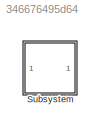
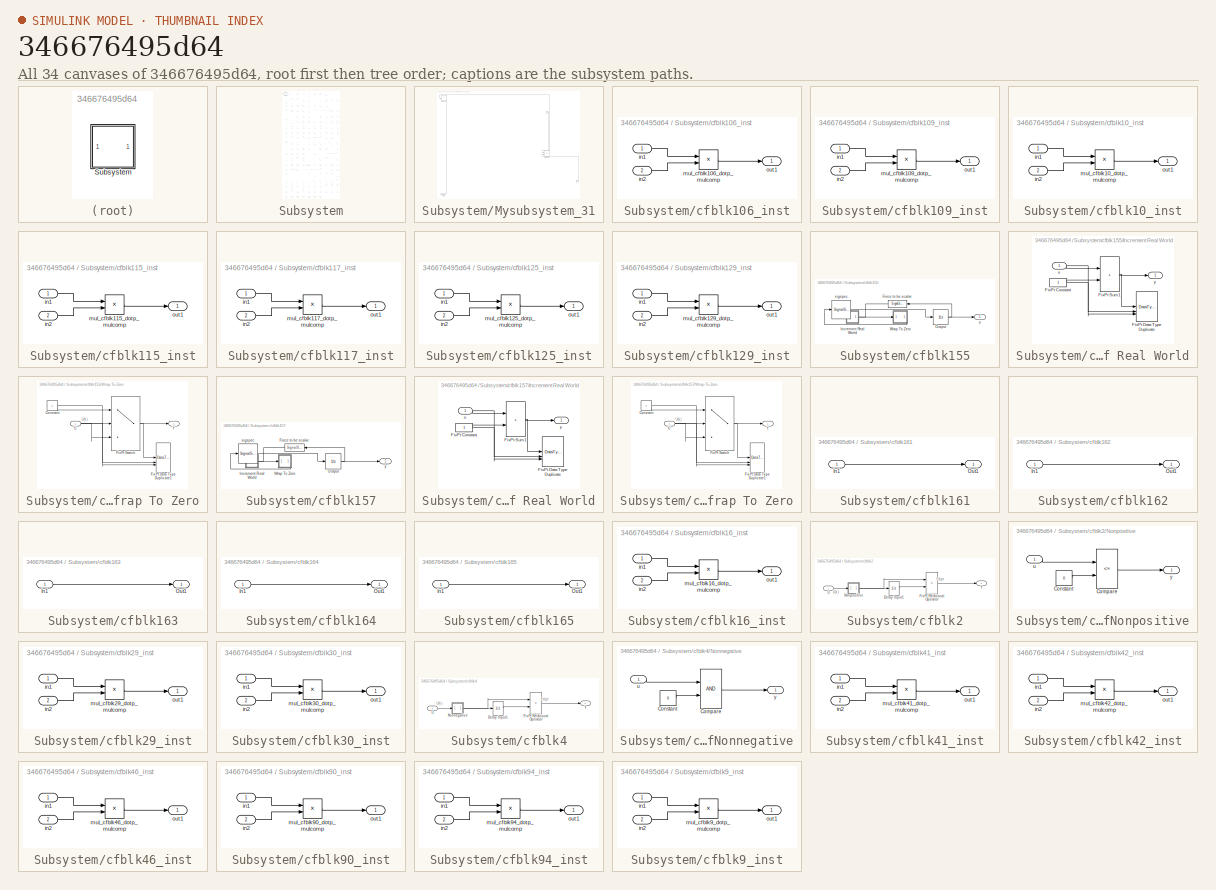
[diagram: thumbnail index - all 34 canvases of the model, root first then tree order]
MODEL slx_346676495d64
KIND model
CONFIG AbsTol = auto
CONFIG EnableMultiTasking = off
CONFIG FixedStep = auto
CONFIG MaxStep = auto
CONFIG MinStep = auto
CONFIG RelTol = 1e-3
CONFIG SampleTimeConstraint = Unconstrained
CONFIG SolverName = VariableStepAuto
CONFIG StartTime = 0.0
CONFIG StopTime = 10.0
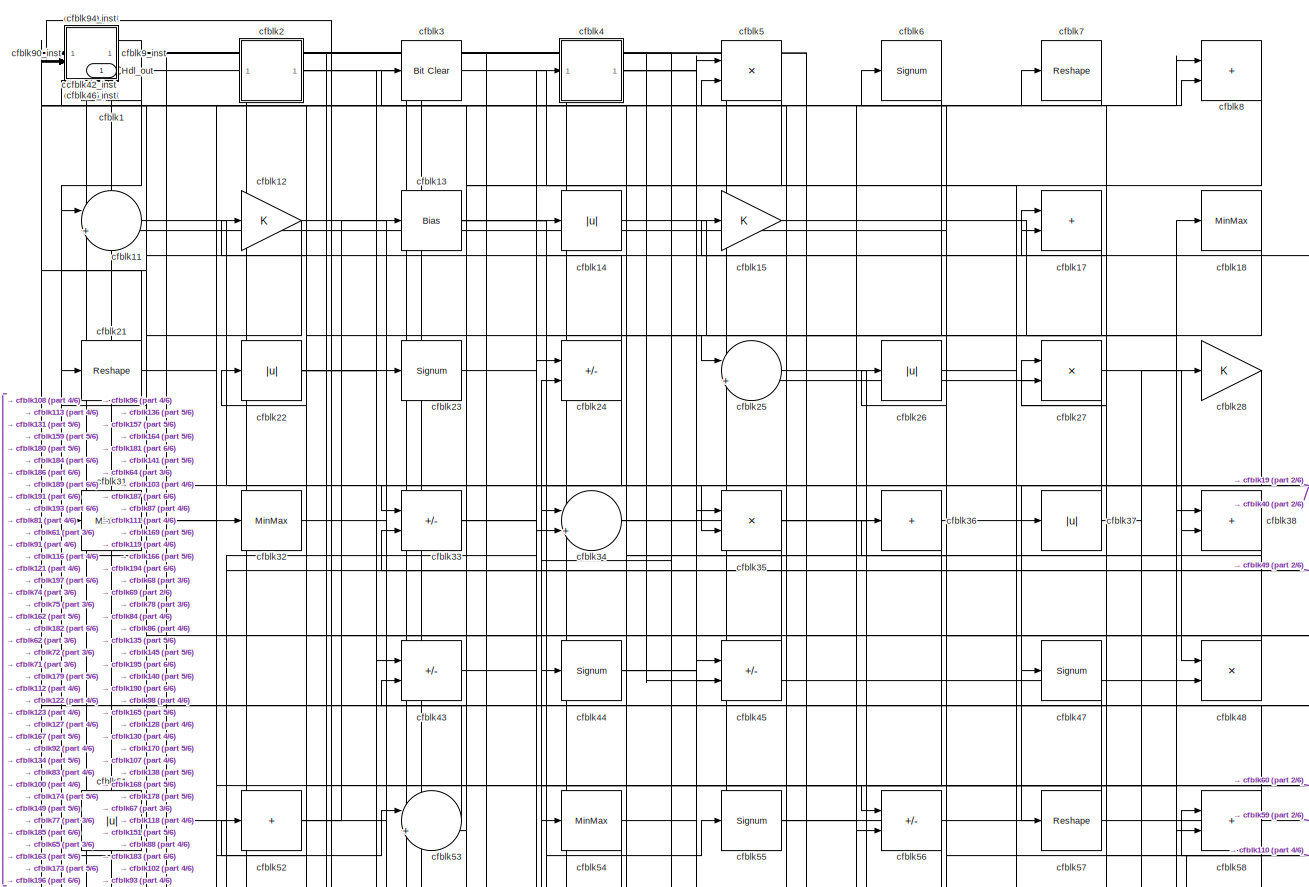
[diagram: Subsystem - part 1/6, full width, top band]
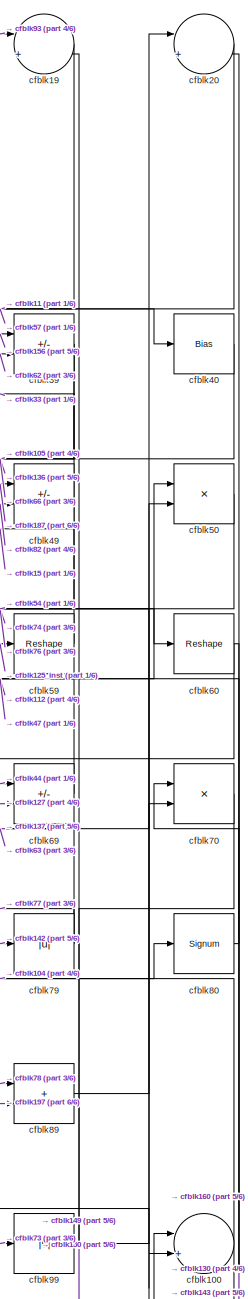
[diagram: Subsystem - part 2/6, top right region]
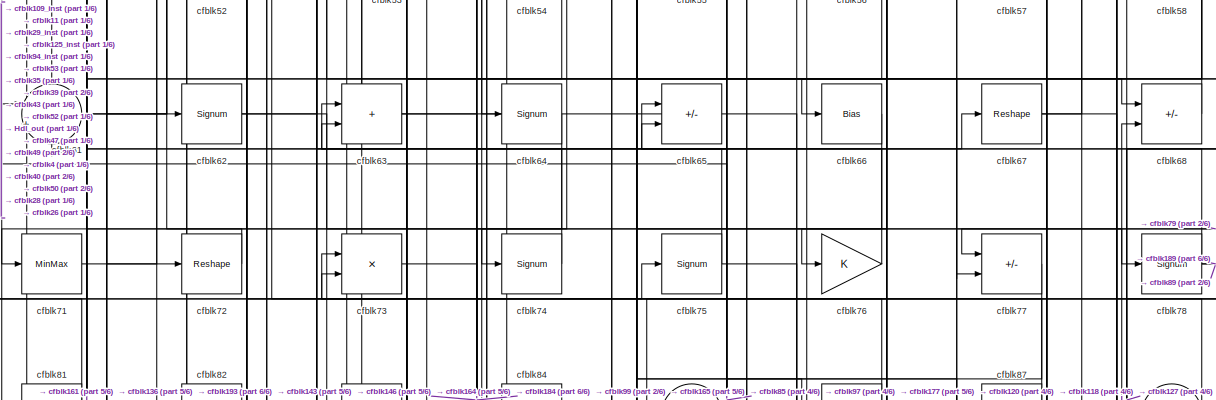
[diagram: Subsystem - part 3/6, full width, middle band]
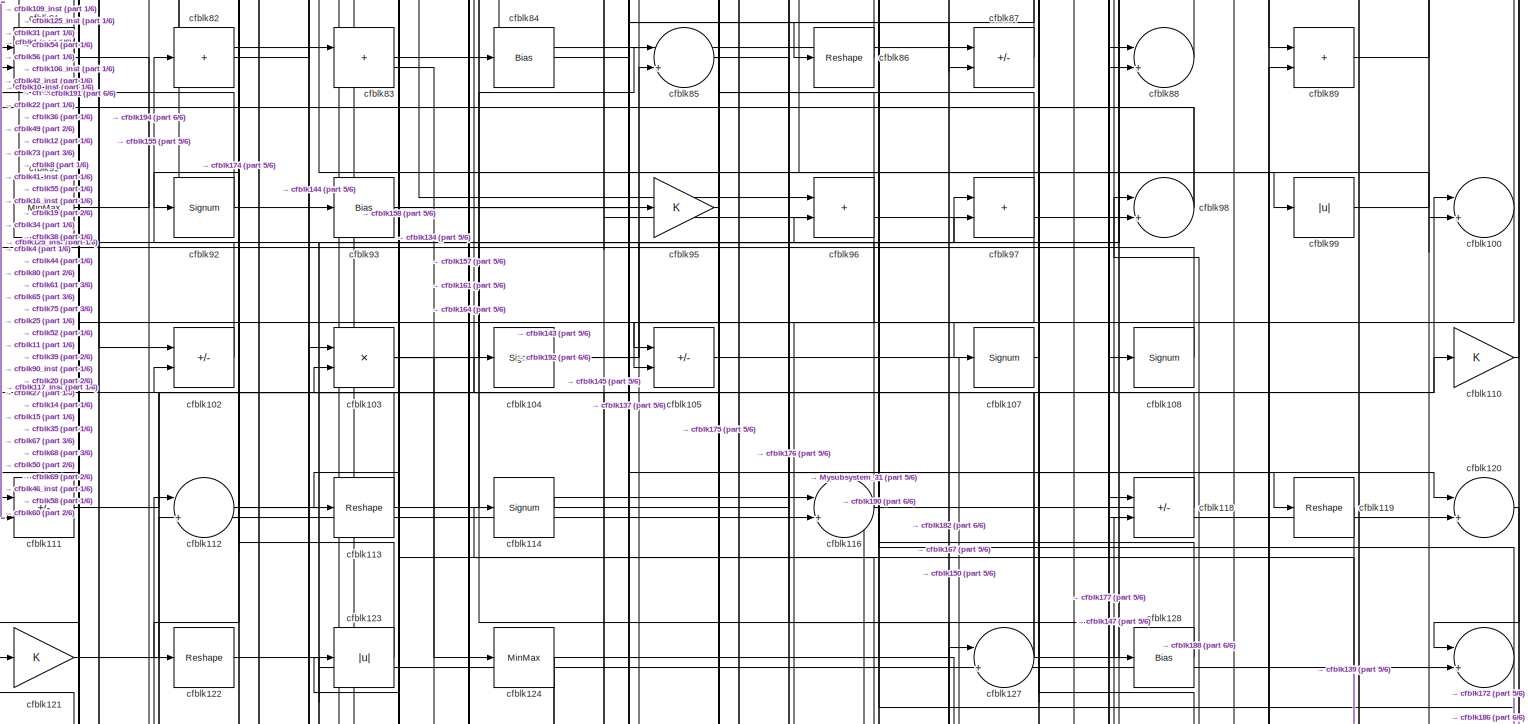
[diagram: Subsystem - part 4/6, full width, middle band]
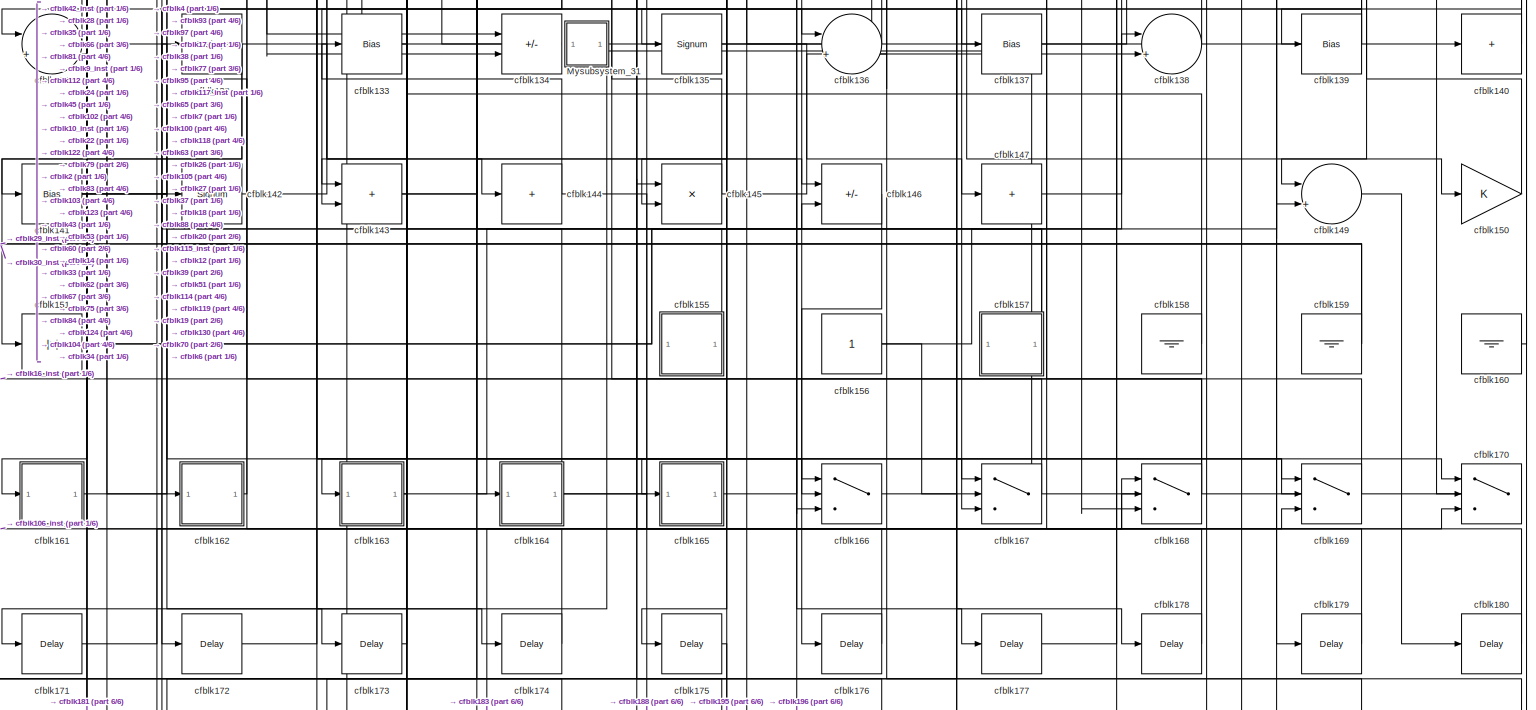
[diagram: Subsystem - part 5/6, full width, bottom band]
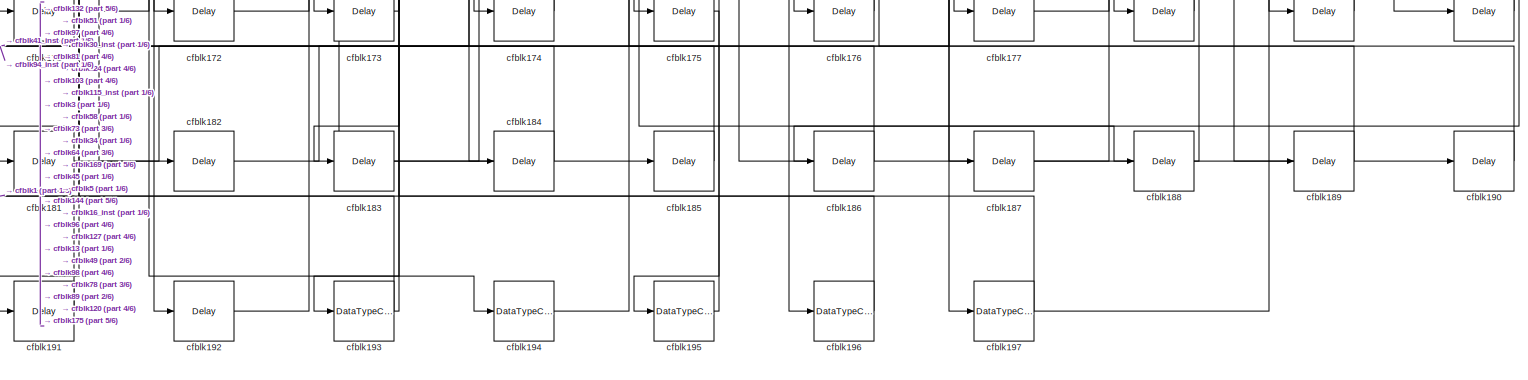
[diagram: Subsystem - part 6/6, full width, bottom band]
BLOCK [SubSystem] Subsystem
BLOCK [Outport] Subsystem/Hdl_out
  OutDataTypeStr = uint8
  SampleTime = 1
BLOCK [SubSystem] Subsystem/Mysubsystem_31
BLOCK [Inport] Subsystem/Mysubsystem_31/In1
  OutDataTypeStr = uint8
  PortDimensions = 1
  SampleTime = 1
BLOCK [Inport] Subsystem/Mysubsystem_31/In2
  OutDataTypeStr = uint8
  Port = 2
  PortDimensions = 1
  SampleTime = 1
BLOCK [Outport] Subsystem/Mysubsystem_31/Out1
  SampleTime = 1
BLOCK [Sum] Subsystem/Mysubsystem_31/cfblk101
  IconShape = rectangular
  Inputs = +
BLOCK [Sum] Subsystem/Mysubsystem_31/cfblk148
  IconShape = rectangular
  Inputs = +-
BLOCK [Logic] Subsystem/cfblk1
  AllPortsSameDT = off
  OutDataTypeStr = boolean
BLOCK [Sum] Subsystem/cfblk100
  Inputs = |++
  OutDataTypeStr = uint8
BLOCK [Sum] Subsystem/cfblk102
  IconShape = rectangular
  Inputs = +-
  OutDataTypeStr = uint8
BLOCK [Product] Subsystem/cfblk103
  Inputs = */
  OutDataTypeStr = uint8
  RndMeth = Zero
  SaturateOnIntegerOverflow = on
BLOCK [Signum] Subsystem/cfblk104
BLOCK [Sum] Subsystem/cfblk105
  IconShape = rectangular
  Inputs = +-
  OutDataTypeStr = uint8
BLOCK [SubSystem] Subsystem/cfblk106_inst
BLOCK [Inport] Subsystem/cfblk106_inst/in1
  OutDataTypeStr = uint8
  SampleTime = 1
BLOCK [Inport] Subsystem/cfblk106_inst/in2
  OutDataTypeStr = uint8
  Port = 2
  SampleTime = 1
BLOCK [Product] Subsystem/cfblk106_inst/mul_cfblk106_dotp_mulcomp
  Inputs = **
  OutDataTypeStr = uint8
  SampleTime = 1
BLOCK [Outport] Subsystem/cfblk106_inst/out1
  OutDataTypeStr = uint8
  SampleTime = 1
BLOCK [Signum] Subsystem/cfblk107
BLOCK [Signum] Subsystem/cfblk108
BLOCK [SubSystem] Subsystem/cfblk109_inst
BLOCK [Inport] Subsystem/cfblk109_inst/in1
  OutDataTypeStr = uint8
  SampleTime = 1
BLOCK [Inport] Subsystem/cfblk109_inst/in2
  OutDataTypeStr = uint8
  Port = 2
  SampleTime = 1
BLOCK [Product] Subsystem/cfblk109_inst/mul_cfblk109_dotp_mulcomp
  Inputs = **
  OutDataTypeStr = uint8
  SampleTime = 1
BLOCK [Outport] Subsystem/cfblk109_inst/out1
  OutDataTypeStr = uint8
  SampleTime = 1
BLOCK [SubSystem] Subsystem/cfblk10_inst
BLOCK [Inport] Subsystem/cfblk10_inst/in1
  OutDataTypeStr = uint8
  SampleTime = 1
BLOCK [Inport] Subsystem/cfblk10_inst/in2
  OutDataTypeStr = uint8
  Port = 2
  SampleTime = 1
BLOCK [Product] Subsystem/cfblk10_inst/mul_cfblk10_dotp_mulcomp
  Inputs = **
  OutDataTypeStr = uint8
  SampleTime = 1
BLOCK [Outport] Subsystem/cfblk10_inst/out1
  OutDataTypeStr = uint8
  SampleTime = 1
BLOCK [Sum] Subsystem/cfblk11
  Inputs = |++
  OutDataTypeStr = uint8
BLOCK [Gain] Subsystem/cfblk110
  OutDataTypeStr = uint8
BLOCK [Sum] Subsystem/cfblk111
  IconShape = rectangular
  Inputs = +-
  OutDataTypeStr = uint8
BLOCK [Sum] Subsystem/cfblk112
  Inputs = |++
  OutDataTypeStr = uint8
BLOCK [Reshape] Subsystem/cfblk113
BLOCK [Signum] Subsystem/cfblk114
BLOCK [SubSystem] Subsystem/cfblk115_inst
BLOCK [Inport] Subsystem/cfblk115_inst/in1
  OutDataTypeStr = uint8
  SampleTime = 1
BLOCK [Inport] Subsystem/cfblk115_inst/in2
  OutDataTypeStr = uint8
  Port = 2
  SampleTime = 1
BLOCK [Product] Subsystem/cfblk115_inst/mul_cfblk115_dotp_mulcomp
  Inputs = **
  OutDataTypeStr = uint8
  SampleTime = 1
BLOCK [Outport] Subsystem/cfblk115_inst/out1
  OutDataTypeStr = uint8
  SampleTime = 1
BLOCK [Sum] Subsystem/cfblk116
  Inputs = |++
  OutDataTypeStr = uint8
BLOCK [SubSystem] Subsystem/cfblk117_inst
BLOCK [Inport] Subsystem/cfblk117_inst/in1
  OutDataTypeStr = uint8
  SampleTime = 1
BLOCK [Inport] Subsystem/cfblk117_inst/in2
  OutDataTypeStr = uint8
  Port = 2
  SampleTime = 1
BLOCK [Product] Subsystem/cfblk117_inst/mul_cfblk117_dotp_mulcomp
  Inputs = **
  OutDataTypeStr = uint8
  SampleTime = 1
BLOCK [Outport] Subsystem/cfblk117_inst/out1
  OutDataTypeStr = uint8
  SampleTime = 1
BLOCK [Sum] Subsystem/cfblk118
  IconShape = rectangular
  Inputs = +-
  OutDataTypeStr = uint8
BLOCK [Reshape] Subsystem/cfblk119
BLOCK [Gain] Subsystem/cfblk12
  OutDataTypeStr = uint8
BLOCK [Sum] Subsystem/cfblk120
  Inputs = |++
  OutDataTypeStr = uint8
BLOCK [Gain] Subsystem/cfblk121
  OutDataTypeStr = uint8
BLOCK [Reshape] Subsystem/cfblk122
BLOCK [Abs] Subsystem/cfblk123
  OutDataTypeStr = uint8
  SaturateOnIntegerOverflow = off
BLOCK [MinMax] Subsystem/cfblk124
  OutDataTypeStr = uint8
BLOCK [SubSystem] Subsystem/cfblk125_inst
BLOCK [Inport] Subsystem/cfblk125_inst/in1
  OutDataTypeStr = uint8
  SampleTime = 1
BLOCK [Inport] Subsystem/cfblk125_inst/in2
  OutDataTypeStr = uint8
  Port = 2
  SampleTime = 1
BLOCK [Product] Subsystem/cfblk125_inst/mul_cfblk125_dotp_mulcomp
  Inputs = **
  OutDataTypeStr = uint8
  SampleTime = 1
BLOCK [Outport] Subsystem/cfblk125_inst/out1
  OutDataTypeStr = uint8
  SampleTime = 1
BLOCK [Sum] Subsystem/cfblk127
  Inputs = |++
  OutDataTypeStr = uint8
BLOCK [Bias] Subsystem/cfblk128
  Bias = 0.0
  SaturateOnIntegerOverflow = off
BLOCK [SubSystem] Subsystem/cfblk129_inst
BLOCK [Inport] Subsystem/cfblk129_inst/in1
  OutDataTypeStr = uint8
  SampleTime = 1
BLOCK [Inport] Subsystem/cfblk129_inst/in2
  OutDataTypeStr = uint8
  Port = 2
  SampleTime = 1
BLOCK [Product] Subsystem/cfblk129_inst/mul_cfblk129_dotp_mulcomp
  Inputs = **
  OutDataTypeStr = uint8
  SampleTime = 1
BLOCK [Outport] Subsystem/cfblk129_inst/out1
  OutDataTypeStr = uint8
  SampleTime = 1
BLOCK [Bias] Subsystem/cfblk13
  Bias = 0.0
  SaturateOnIntegerOverflow = off
BLOCK [Sum] Subsystem/cfblk130
  Inputs = |++
  OutDataTypeStr = uint8
BLOCK [Sum] Subsystem/cfblk131
  Inputs = |++
  OutDataTypeStr = uint8
BLOCK [Reshape] Subsystem/cfblk132
BLOCK [Bias] Subsystem/cfblk133
  Bias = 0.0
  SaturateOnIntegerOverflow = off
BLOCK [Sum] Subsystem/cfblk134
  IconShape = rectangular
  Inputs = +-
  OutDataTypeStr = uint8
BLOCK [Signum] Subsystem/cfblk135
BLOCK [Sum] Subsystem/cfblk136
  Inputs = |++
  OutDataTypeStr = uint8
BLOCK [Bias] Subsystem/cfblk137
  Bias = 0.0
  SaturateOnIntegerOverflow = off
BLOCK [Sum] Subsystem/cfblk138
  Inputs = |++
  OutDataTypeStr = uint8
BLOCK [Bias] Subsystem/cfblk139
  Bias = 0.0
  SaturateOnIntegerOverflow = off
BLOCK [Abs] Subsystem/cfblk14
  OutDataTypeStr = uint8
  SaturateOnIntegerOverflow = off
BLOCK [Sum] Subsystem/cfblk140
  IconShape = rectangular
  Inputs = +
  OutDataTypeStr = uint8
BLOCK [Bias] Subsystem/cfblk141
  Bias = 0.0
  SaturateOnIntegerOverflow = off
BLOCK [Signum] Subsystem/cfblk142
BLOCK [Sum] Subsystem/cfblk143
  IconShape = rectangular
  OutDataTypeStr = uint8
BLOCK [Sum] Subsystem/cfblk144
  IconShape = rectangular
  Inputs = +
  OutDataTypeStr = uint8
BLOCK [Product] Subsystem/cfblk145
  Inputs = */
  OutDataTypeStr = uint8
  RndMeth = Zero
  SaturateOnIntegerOverflow = on
BLOCK [Sum] Subsystem/cfblk146
  IconShape = rectangular
  Inputs = +-
  OutDataTypeStr = uint8
BLOCK [Sum] Subsystem/cfblk147
  IconShape = rectangular
  Inputs = +
  OutDataTypeStr = uint8
BLOCK [Sum] Subsystem/cfblk149
  Inputs = |++
  OutDataTypeStr = uint8
BLOCK [Gain] Subsystem/cfblk15
  OutDataTypeStr = uint8
BLOCK [Gain] Subsystem/cfblk150
  OutDataTypeStr = uint8
BLOCK [Abs] Subsystem/cfblk151
  OutDataTypeStr = uint8
  SaturateOnIntegerOverflow = off
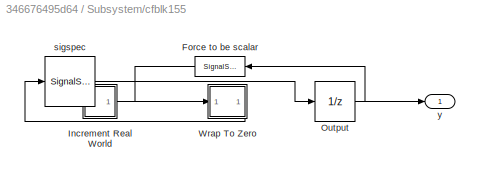
BLOCK [SubSystem] Subsystem/cfblk155
BLOCK [SignalSpecification] Subsystem/cfblk155/Force to be scalar
  Dimensions = 1
  DisableCoverage = on
BLOCK [SubSystem] Subsystem/cfblk155/Increment Real World
BLOCK [Constant] Subsystem/cfblk155/Increment Real World/FixPt Constant
  DisableCoverage = on
  OutDataTypeStr = Inherit: Inherit via back propagation
  SampleTime = -1
BLOCK [DataTypeDuplicate] Subsystem/cfblk155/Increment Real World/FixPt Data Type Duplicate
  DisableCoverage = on
  NumInputPorts = 3
BLOCK [Sum] Subsystem/cfblk155/Increment Real World/FixPt Sum1
  IconShape = rectangular
  InputSameDT = on
  LockScale = on
  OutDataTypeStr = Inherit: Inherit via back propagation
BLOCK [Inport] Subsystem/cfblk155/Increment Real World/u
  OutDataTypeStr = uint8
  SampleTime = 1
BLOCK [Outport] Subsystem/cfblk155/Increment Real World/y
  SampleTime = 1
BLOCK [UnitDelay] Subsystem/cfblk155/Output
  HasFrameUpgradeWarning = on
  InitialCondition = 0.0
  SampleTime = tsamp
BLOCK [SubSystem] Subsystem/cfblk155/Wrap To Zero
BLOCK [Constant] Subsystem/cfblk155/Wrap To Zero/Constant
  DisableCoverage = on
  OutDataTypeStr = Inherit: Inherit via back propagation
  SampleTime = -1
  Value = 0
BLOCK [DataTypeDuplicate] Subsystem/cfblk155/Wrap To Zero/FixPt Data Type Duplicate1
  DisableCoverage = on
  NumInputPorts = 3
BLOCK [Switch] Subsystem/cfblk155/Wrap To Zero/FixPt Switch
  Criteria = u2 > Threshold
  InputSameDT = off
  OutDataTypeStr = Inherit: Inherit via back propagation
  SaturateOnIntegerOverflow = off
  Threshold = Threshold
  ZeroCross = off
BLOCK [Inport] Subsystem/cfblk155/Wrap To Zero/U
  OutDataTypeStr = uint8
  SampleTime = 1
BLOCK [Outport] Subsystem/cfblk155/Wrap To Zero/Y
  SampleTime = 1
BLOCK [SignalSpecification] Subsystem/cfblk155/sigspec
  Dimensions = 1
  OutDataTypeStr = uint8
BLOCK [Outport] Subsystem/cfblk155/y
  SampleTime = 1
BLOCK [Constant] Subsystem/cfblk156
  OutDataTypeStr = uint8
  SampleTime = -1
BLOCK [SubSystem] Subsystem/cfblk157
BLOCK [SignalSpecification] Subsystem/cfblk157/Force to be scalar
  Dimensions = 1
  DisableCoverage = on
BLOCK [SubSystem] Subsystem/cfblk157/Increment Real World
BLOCK [Constant] Subsystem/cfblk157/Increment Real World/FixPt Constant
  DisableCoverage = on
  OutDataTypeStr = Inherit: Inherit via back propagation
  SampleTime = -1
BLOCK [DataTypeDuplicate] Subsystem/cfblk157/Increment Real World/FixPt Data Type Duplicate
  DisableCoverage = on
  NumInputPorts = 3
BLOCK [Sum] Subsystem/cfblk157/Increment Real World/FixPt Sum1
  IconShape = rectangular
  InputSameDT = on
  LockScale = on
  OutDataTypeStr = Inherit: Inherit via back propagation
BLOCK [Inport] Subsystem/cfblk157/Increment Real World/u
  OutDataTypeStr = uint16
  SampleTime = 1
BLOCK [Outport] Subsystem/cfblk157/Increment Real World/y
  SampleTime = 1
BLOCK [UnitDelay] Subsystem/cfblk157/Output
  HasFrameUpgradeWarning = on
  InitialCondition = 0.0
  SampleTime = tsamp
BLOCK [SubSystem] Subsystem/cfblk157/Wrap To Zero
BLOCK [Constant] Subsystem/cfblk157/Wrap To Zero/Constant
  DisableCoverage = on
  OutDataTypeStr = Inherit: Inherit via back propagation
  SampleTime = -1
  Value = 0
BLOCK [DataTypeDuplicate] Subsystem/cfblk157/Wrap To Zero/FixPt Data Type Duplicate1
  DisableCoverage = on
  NumInputPorts = 3
BLOCK [Switch] Subsystem/cfblk157/Wrap To Zero/FixPt Switch
  Criteria = u2 > Threshold
  InputSameDT = off
  OutDataTypeStr = Inherit: Inherit via back propagation
  SaturateOnIntegerOverflow = off
  Threshold = Threshold
  ZeroCross = off
BLOCK [Inport] Subsystem/cfblk157/Wrap To Zero/U
  OutDataTypeStr = uint16
  SampleTime = 1
BLOCK [Outport] Subsystem/cfblk157/Wrap To Zero/Y
  SampleTime = 1
BLOCK [SignalSpecification] Subsystem/cfblk157/sigspec
  Dimensions = 1
  OutDataTypeStr = uint16
BLOCK [Outport] Subsystem/cfblk157/y
  SampleTime = 1
BLOCK [Ground] Subsystem/cfblk158
BLOCK [Ground] Subsystem/cfblk159
BLOCK [Ground] Subsystem/cfblk160
BLOCK [SubSystem] Subsystem/cfblk161
BLOCK [Inport] Subsystem/cfblk161/In1
  OutDataTypeStr = uint8
  PortDimensions = 1
  SampleTime = 1
BLOCK [Outport] Subsystem/cfblk161/Out1
  SampleTime = 1
BLOCK [SubSystem] Subsystem/cfblk162
BLOCK [Inport] Subsystem/cfblk162/In1
  OutDataTypeStr = uint8
  PortDimensions = 1
  SampleTime = 1
BLOCK [Outport] Subsystem/cfblk162/Out1
  SampleTime = 1
BLOCK [SubSystem] Subsystem/cfblk163
BLOCK [Inport] Subsystem/cfblk163/In1
  OutDataTypeStr = uint8
  PortDimensions = 1
  SampleTime = 1
BLOCK [Outport] Subsystem/cfblk163/Out1
  SampleTime = 1
BLOCK [SubSystem] Subsystem/cfblk164
BLOCK [Inport] Subsystem/cfblk164/In1
  OutDataTypeStr = uint8
  PortDimensions = 1
  SampleTime = 1
BLOCK [Outport] Subsystem/cfblk164/Out1
  SampleTime = 1
BLOCK [SubSystem] Subsystem/cfblk165
BLOCK [Inport] Subsystem/cfblk165/In1
  OutDataTypeStr = uint8
  PortDimensions = 1
  SampleTime = 1
BLOCK [Outport] Subsystem/cfblk165/Out1
  SampleTime = 1
BLOCK [Switch] Subsystem/cfblk166
  InputSameDT = off
  OutDataTypeStr = uint8
  SaturateOnIntegerOverflow = off
BLOCK [Switch] Subsystem/cfblk167
  InputSameDT = off
  OutDataTypeStr = uint8
  SaturateOnIntegerOverflow = off
BLOCK [Switch] Subsystem/cfblk168
  InputSameDT = off
  OutDataTypeStr = uint8
  SaturateOnIntegerOverflow = off
BLOCK [Switch] Subsystem/cfblk169
  InputSameDT = off
  OutDataTypeStr = uint8
  SaturateOnIntegerOverflow = off
BLOCK [SubSystem] Subsystem/cfblk16_inst
BLOCK [Inport] Subsystem/cfblk16_inst/in1
  OutDataTypeStr = uint8
  SampleTime = 1
BLOCK [Inport] Subsystem/cfblk16_inst/in2
  OutDataTypeStr = uint8
  Port = 2
  SampleTime = 1
BLOCK [Product] Subsystem/cfblk16_inst/mul_cfblk16_dotp_mulcomp
  Inputs = **
  OutDataTypeStr = uint8
  SampleTime = 1
BLOCK [Outport] Subsystem/cfblk16_inst/out1
  OutDataTypeStr = uint8
  SampleTime = 1
BLOCK [Sum] Subsystem/cfblk17
  IconShape = rectangular
  OutDataTypeStr = uint8
BLOCK [Switch] Subsystem/cfblk170
  InputSameDT = off
  OutDataTypeStr = uint8
  SaturateOnIntegerOverflow = off
BLOCK [Delay] Subsystem/cfblk171
  InputPortMap = u0
  SampleTime = 1
BLOCK [Delay] Subsystem/cfblk172
  InputPortMap = u0
  SampleTime = 1
BLOCK [Delay] Subsystem/cfblk173
  InputPortMap = u0
  SampleTime = 1
BLOCK [Delay] Subsystem/cfblk174
  InputPortMap = u0
  SampleTime = 1
BLOCK [Delay] Subsystem/cfblk175
  InputPortMap = u0
  SampleTime = 1
BLOCK [Delay] Subsystem/cfblk176
  InputPortMap = u0
  SampleTime = 1
BLOCK [Delay] Subsystem/cfblk177
  InputPortMap = u0
  SampleTime = 1
BLOCK [Delay] Subsystem/cfblk178
  InputPortMap = u0
  SampleTime = 1
BLOCK [Delay] Subsystem/cfblk179
  InputPortMap = u0
  SampleTime = 1
BLOCK [MinMax] Subsystem/cfblk18
  OutDataTypeStr = uint8
BLOCK [Delay] Subsystem/cfblk180
  InputPortMap = u0
  SampleTime = 1
BLOCK [Delay] Subsystem/cfblk181
  InputPortMap = u0
  SampleTime = 1
BLOCK [Delay] Subsystem/cfblk182
  InputPortMap = u0
  SampleTime = 1
BLOCK [Delay] Subsystem/cfblk183
  InputPortMap = u0
  SampleTime = 1
BLOCK [Delay] Subsystem/cfblk184
  InputPortMap = u0
  SampleTime = 1
BLOCK [Delay] Subsystem/cfblk185
  InputPortMap = u0
  SampleTime = 1
BLOCK [Delay] Subsystem/cfblk186
  InputPortMap = u0
  SampleTime = 1
BLOCK [Delay] Subsystem/cfblk187
  InputPortMap = u0
  SampleTime = 1
BLOCK [Delay] Subsystem/cfblk188
  InputPortMap = u0
  SampleTime = 1
BLOCK [Delay] Subsystem/cfblk189
  InputPortMap = u0
  SampleTime = 1
BLOCK [Sum] Subsystem/cfblk19
  Inputs = |++
  OutDataTypeStr = uint8
BLOCK [Delay] Subsystem/cfblk190
  InputPortMap = u0
  SampleTime = 1
BLOCK [Delay] Subsystem/cfblk191
  InputPortMap = u0
  SampleTime = 1
BLOCK [Delay] Subsystem/cfblk192
  InputPortMap = u0
  SampleTime = 1
BLOCK [DataTypeConversion] Subsystem/cfblk193
  OutDataTypeStr = uint8
  RndMeth = Floor
  SaturateOnIntegerOverflow = off
BLOCK [DataTypeConversion] Subsystem/cfblk194
  OutDataTypeStr = uint8
  RndMeth = Floor
  SaturateOnIntegerOverflow = off
BLOCK [DataTypeConversion] Subsystem/cfblk195
  OutDataTypeStr = uint8
  RndMeth = Floor
  SaturateOnIntegerOverflow = off
BLOCK [DataTypeConversion] Subsystem/cfblk196
  OutDataTypeStr = uint8
  RndMeth = Floor
  SaturateOnIntegerOverflow = off
BLOCK [DataTypeConversion] Subsystem/cfblk197
  OutDataTypeStr = uint8
  RndMeth = Floor
  SaturateOnIntegerOverflow = off
BLOCK [SubSystem] Subsystem/cfblk2
BLOCK [UnitDelay] Subsystem/cfblk2/Delay Input1
  Description = Store in Global RAM
  DisableCoverage = on
  HasFrameUpgradeWarning = on
  InitialCondition = vinit
  SampleTime = -1
BLOCK [RelationalOperator] Subsystem/cfblk2/FixPt Relational Operator
  InputSameDT = off
  Operator = >
  OutDataTypeStr = fixdt(0, 8)
  ZeroCross = off
BLOCK [SubSystem] Subsystem/cfblk2/Nonpositive
BLOCK [RelationalOperator] Subsystem/cfblk2/Nonpositive/Compare
  Operator = <=
  OutDataTypeStr = boolean
  ZeroCross = off
BLOCK [Constant] Subsystem/cfblk2/Nonpositive/Constant
  DisableCoverage = on
  OutDataTypeStr = Inherit: Inherit via back propagation
  PreserveConstantTs = on
  SampleTime = -1
  Value = 0
BLOCK [Inport] Subsystem/cfblk2/Nonpositive/u
  OutDataTypeStr = uint8
  SampleTime = 1
BLOCK [Outport] Subsystem/cfblk2/Nonpositive/y
  SampleTime = 1
BLOCK [Inport] Subsystem/cfblk2/U
  OutDataTypeStr = uint8
  SampleTime = 1
BLOCK [Outport] Subsystem/cfblk2/Y
  SampleTime = 1
BLOCK [Sum] Subsystem/cfblk20
  Inputs = |++
  OutDataTypeStr = uint8
BLOCK [Reshape] Subsystem/cfblk21
BLOCK [Abs] Subsystem/cfblk22
  OutDataTypeStr = uint8
  SaturateOnIntegerOverflow = off
BLOCK [Signum] Subsystem/cfblk23
BLOCK [Sum] Subsystem/cfblk24
  IconShape = rectangular
  Inputs = +-
  OutDataTypeStr = uint8
BLOCK [Sum] Subsystem/cfblk25
  Inputs = |++
  OutDataTypeStr = uint8
BLOCK [Abs] Subsystem/cfblk26
  OutDataTypeStr = uint8
  SaturateOnIntegerOverflow = off
BLOCK [Product] Subsystem/cfblk27
  Inputs = */
  OutDataTypeStr = uint8
  RndMeth = Zero
  SaturateOnIntegerOverflow = on
BLOCK [Gain] Subsystem/cfblk28
  OutDataTypeStr = uint8
BLOCK [SubSystem] Subsystem/cfblk29_inst
BLOCK [Inport] Subsystem/cfblk29_inst/in1
  OutDataTypeStr = uint8
  SampleTime = 1
BLOCK [Inport] Subsystem/cfblk29_inst/in2
  OutDataTypeStr = uint8
  Port = 2
  SampleTime = 1
BLOCK [Product] Subsystem/cfblk29_inst/mul_cfblk29_dotp_mulcomp
  Inputs = **
  OutDataTypeStr = uint8
  SampleTime = 1
BLOCK [Outport] Subsystem/cfblk29_inst/out1
  OutDataTypeStr = uint8
  SampleTime = 1
BLOCK [Reference] Subsystem/cfblk3  REF=simulink/Logic and Bit
Operations/Bit Clear
  LibrarySourceBlock = hdlsllib/Logic and Bit\nOperations/Bit Clear
  SourceBlock = simulink/Logic and Bit\nOperations/Bit Clear
  SourceType = Bit Clear
BLOCK [SubSystem] Subsystem/cfblk30_inst
BLOCK [Inport] Subsystem/cfblk30_inst/in1
  OutDataTypeStr = uint8
  SampleTime = 1
BLOCK [Inport] Subsystem/cfblk30_inst/in2
  OutDataTypeStr = uint8
  Port = 2
  SampleTime = 1
BLOCK [Product] Subsystem/cfblk30_inst/mul_cfblk30_dotp_mulcomp
  Inputs = **
  OutDataTypeStr = uint8
  SampleTime = 1
BLOCK [Outport] Subsystem/cfblk30_inst/out1
  OutDataTypeStr = uint8
  SampleTime = 1
BLOCK [MinMax] Subsystem/cfblk31
  OutDataTypeStr = uint8
BLOCK [MinMax] Subsystem/cfblk32
  OutDataTypeStr = uint8
BLOCK [Sum] Subsystem/cfblk33
  IconShape = rectangular
  Inputs = +-
  OutDataTypeStr = uint8
BLOCK [Sum] Subsystem/cfblk34
  Inputs = |++
  OutDataTypeStr = uint8
BLOCK [Product] Subsystem/cfblk35
  Inputs = */
  OutDataTypeStr = uint8
  RndMeth = Zero
  SaturateOnIntegerOverflow = on
BLOCK [Sum] Subsystem/cfblk36
  IconShape = rectangular
  Inputs = +
  OutDataTypeStr = uint8
BLOCK [Abs] Subsystem/cfblk37
  OutDataTypeStr = uint8
  SaturateOnIntegerOverflow = off
BLOCK [Sum] Subsystem/cfblk38
  IconShape = rectangular
  OutDataTypeStr = uint8
BLOCK [Sum] Subsystem/cfblk39
  IconShape = rectangular
  Inputs = +-
  OutDataTypeStr = uint8
BLOCK [SubSystem] Subsystem/cfblk4
BLOCK [UnitDelay] Subsystem/cfblk4/Delay Input1
  Description = Store in Global RAM
  DisableCoverage = on
  HasFrameUpgradeWarning = on
  InitialCondition = vinit
  SampleTime = -1
BLOCK [RelationalOperator] Subsystem/cfblk4/FixPt Relational Operator
  InputSameDT = off
  Operator = >
  OutDataTypeStr = fixdt(0, 8)
  ZeroCross = off
BLOCK [SubSystem] Subsystem/cfblk4/Nonnegative
BLOCK [RelationalOperator] Subsystem/cfblk4/Nonnegative/Compare
  OutDataTypeStr = boolean
  ZeroCross = off
BLOCK [Constant] Subsystem/cfblk4/Nonnegative/Constant
  DisableCoverage = on
  OutDataTypeStr = Inherit: Inherit via back propagation
  PreserveConstantTs = on
  SampleTime = -1
  Value = 0
BLOCK [Inport] Subsystem/cfblk4/Nonnegative/u
  OutDataTypeStr = uint8
  SampleTime = 1
BLOCK [Outport] Subsystem/cfblk4/Nonnegative/y
  SampleTime = 1
BLOCK [Inport] Subsystem/cfblk4/U
  OutDataTypeStr = uint8
  SampleTime = 1
BLOCK [Outport] Subsystem/cfblk4/Y
  SampleTime = 1
BLOCK [Bias] Subsystem/cfblk40
  Bias = 0.0
  SaturateOnIntegerOverflow = off
BLOCK [SubSystem] Subsystem/cfblk41_inst
BLOCK [Inport] Subsystem/cfblk41_inst/in1
  OutDataTypeStr = uint8
  SampleTime = 1
BLOCK [Inport] Subsystem/cfblk41_inst/in2
  OutDataTypeStr = uint8
  Port = 2
  SampleTime = 1
BLOCK [Product] Subsystem/cfblk41_inst/mul_cfblk41_dotp_mulcomp
  Inputs = **
  OutDataTypeStr = uint8
  SampleTime = 1
BLOCK [Outport] Subsystem/cfblk41_inst/out1
  OutDataTypeStr = uint8
  SampleTime = 1
BLOCK [SubSystem] Subsystem/cfblk42_inst
BLOCK [Inport] Subsystem/cfblk42_inst/in1
  OutDataTypeStr = uint8
  SampleTime = 1
BLOCK [Inport] Subsystem/cfblk42_inst/in2
  OutDataTypeStr = uint8
  Port = 2
  SampleTime = 1
BLOCK [Product] Subsystem/cfblk42_inst/mul_cfblk42_dotp_mulcomp
  Inputs = **
  OutDataTypeStr = uint8
  SampleTime = 1
BLOCK [Outport] Subsystem/cfblk42_inst/out1
  OutDataTypeStr = uint8
  SampleTime = 1
BLOCK [Sum] Subsystem/cfblk43
  IconShape = rectangular
  Inputs = +-
  OutDataTypeStr = uint8
BLOCK [Signum] Subsystem/cfblk44
BLOCK [Sum] Subsystem/cfblk45
  IconShape = rectangular
  Inputs = +-
  OutDataTypeStr = uint8
BLOCK [SubSystem] Subsystem/cfblk46_inst
BLOCK [Inport] Subsystem/cfblk46_inst/in1
  OutDataTypeStr = uint8
  SampleTime = 1
BLOCK [Inport] Subsystem/cfblk46_inst/in2
  OutDataTypeStr = uint8
  Port = 2
  SampleTime = 1
BLOCK [Product] Subsystem/cfblk46_inst/mul_cfblk46_dotp_mulcomp
  Inputs = **
  OutDataTypeStr = uint8
  SampleTime = 1
BLOCK [Outport] Subsystem/cfblk46_inst/out1
  OutDataTypeStr = uint8
  SampleTime = 1
BLOCK [Signum] Subsystem/cfblk47
BLOCK [Product] Subsystem/cfblk48
  Inputs = */
  OutDataTypeStr = uint8
  RndMeth = Zero
  SaturateOnIntegerOverflow = on
BLOCK [Sum] Subsystem/cfblk49
  IconShape = rectangular
  Inputs = +-
  OutDataTypeStr = uint8
BLOCK [Product] Subsystem/cfblk5
  Inputs = */
  OutDataTypeStr = uint8
  RndMeth = Zero
  SaturateOnIntegerOverflow = on
BLOCK [Product] Subsystem/cfblk50
  Inputs = */
  OutDataTypeStr = uint8
  RndMeth = Zero
  SaturateOnIntegerOverflow = on
BLOCK [Abs] Subsystem/cfblk51
  OutDataTypeStr = uint8
  SaturateOnIntegerOverflow = off
BLOCK [Sum] Subsystem/cfblk52
  IconShape = rectangular
  Inputs = +
  OutDataTypeStr = uint8
BLOCK [Sum] Subsystem/cfblk53
  Inputs = |++
  OutDataTypeStr = uint8
BLOCK [MinMax] Subsystem/cfblk54
  OutDataTypeStr = uint8
BLOCK [Signum] Subsystem/cfblk55
BLOCK [Sum] Subsystem/cfblk56
  IconShape = rectangular
  Inputs = +-
  OutDataTypeStr = uint8
BLOCK [Reshape] Subsystem/cfblk57
BLOCK [Sum] Subsystem/cfblk58
  IconShape = rectangular
  OutDataTypeStr = uint8
BLOCK [Reshape] Subsystem/cfblk59
BLOCK [Signum] Subsystem/cfblk6
BLOCK [Reshape] Subsystem/cfblk60
BLOCK [Sum] Subsystem/cfblk61
  Inputs = |++
  OutDataTypeStr = uint8
BLOCK [Signum] Subsystem/cfblk62
BLOCK [Sum] Subsystem/cfblk63
  IconShape = rectangular
  OutDataTypeStr = uint8
BLOCK [Signum] Subsystem/cfblk64
BLOCK [Sum] Subsystem/cfblk65
  IconShape = rectangular
  Inputs = +-
  OutDataTypeStr = uint8
BLOCK [Bias] Subsystem/cfblk66
  Bias = 0.0
  SaturateOnIntegerOverflow = off
BLOCK [Reshape] Subsystem/cfblk67
BLOCK [Sum] Subsystem/cfblk68
  IconShape = rectangular
  Inputs = +-
  OutDataTypeStr = uint8
BLOCK [Sum] Subsystem/cfblk69
  IconShape = rectangular
  Inputs = +-
  OutDataTypeStr = uint8
BLOCK [Reshape] Subsystem/cfblk7
BLOCK [Product] Subsystem/cfblk70
  Inputs = */
  OutDataTypeStr = uint8
  RndMeth = Zero
  SaturateOnIntegerOverflow = on
BLOCK [MinMax] Subsystem/cfblk71
  OutDataTypeStr = uint8
BLOCK [Reshape] Subsystem/cfblk72
BLOCK [Product] Subsystem/cfblk73
  Inputs = */
  OutDataTypeStr = uint8
  RndMeth = Zero
  SaturateOnIntegerOverflow = on
BLOCK [Signum] Subsystem/cfblk74
BLOCK [Signum] Subsystem/cfblk75
BLOCK [Gain] Subsystem/cfblk76
  OutDataTypeStr = uint8
BLOCK [Sum] Subsystem/cfblk77
  IconShape = rectangular
  Inputs = +-
  OutDataTypeStr = uint8
BLOCK [Signum] Subsystem/cfblk78
BLOCK [Abs] Subsystem/cfblk79
  OutDataTypeStr = uint8
  SaturateOnIntegerOverflow = off
BLOCK [Sum] Subsystem/cfblk8
  IconShape = rectangular
  OutDataTypeStr = uint8
BLOCK [Signum] Subsystem/cfblk80
BLOCK [Sum] Subsystem/cfblk81
  IconShape = rectangular
  OutDataTypeStr = uint8
BLOCK [Sum] Subsystem/cfblk82
  IconShape = rectangular
  Inputs = +
  OutDataTypeStr = uint8
BLOCK [Sum] Subsystem/cfblk83
  IconShape = rectangular
  OutDataTypeStr = uint8
BLOCK [Bias] Subsystem/cfblk84
  Bias = 0.0
  SaturateOnIntegerOverflow = off
BLOCK [Sum] Subsystem/cfblk85
  Inputs = |++
  OutDataTypeStr = uint8
BLOCK [Reshape] Subsystem/cfblk86
BLOCK [Sum] Subsystem/cfblk87
  IconShape = rectangular
  Inputs = +-
  OutDataTypeStr = uint8
BLOCK [Sum] Subsystem/cfblk88
  Inputs = |++
  OutDataTypeStr = uint8
BLOCK [Sum] Subsystem/cfblk89
  IconShape = rectangular
  OutDataTypeStr = uint8
BLOCK [SubSystem] Subsystem/cfblk90_inst
BLOCK [Inport] Subsystem/cfblk90_inst/in1
  OutDataTypeStr = uint8
  SampleTime = 1
BLOCK [Inport] Subsystem/cfblk90_inst/in2
  OutDataTypeStr = uint8
  Port = 2
  SampleTime = 1
BLOCK [Product] Subsystem/cfblk90_inst/mul_cfblk90_dotp_mulcomp
  Inputs = **
  OutDataTypeStr = uint8
  SampleTime = 1
BLOCK [Outport] Subsystem/cfblk90_inst/out1
  OutDataTypeStr = uint8
  SampleTime = 1
BLOCK [MinMax] Subsystem/cfblk91
  OutDataTypeStr = uint8
BLOCK [Signum] Subsystem/cfblk92
BLOCK [Bias] Subsystem/cfblk93
  Bias = 0.0
  SaturateOnIntegerOverflow = off
BLOCK [SubSystem] Subsystem/cfblk94_inst
BLOCK [Inport] Subsystem/cfblk94_inst/in1
  OutDataTypeStr = uint8
  SampleTime = 1
BLOCK [Inport] Subsystem/cfblk94_inst/in2
  OutDataTypeStr = uint8
  Port = 2
  SampleTime = 1
BLOCK [Product] Subsystem/cfblk94_inst/mul_cfblk94_dotp_mulcomp
  Inputs = **
  OutDataTypeStr = uint8
  SampleTime = 1
BLOCK [Outport] Subsystem/cfblk94_inst/out1
  OutDataTypeStr = uint8
  SampleTime = 1
BLOCK [Gain] Subsystem/cfblk95
  OutDataTypeStr = uint8
BLOCK [Sum] Subsystem/cfblk96
  IconShape = rectangular
  OutDataTypeStr = uint8
BLOCK [Sum] Subsystem/cfblk97
  IconShape = rectangular
  OutDataTypeStr = uint8
BLOCK [Sum] Subsystem/cfblk98
  Inputs = |++
  OutDataTypeStr = uint8
BLOCK [Abs] Subsystem/cfblk99
  OutDataTypeStr = uint8
  SaturateOnIntegerOverflow = off
BLOCK [SubSystem] Subsystem/cfblk9_inst
BLOCK [Inport] Subsystem/cfblk9_inst/in1
  OutDataTypeStr = uint8
  SampleTime = 1
BLOCK [Inport] Subsystem/cfblk9_inst/in2
  OutDataTypeStr = uint8
  Port = 2
  SampleTime = 1
BLOCK [Product] Subsystem/cfblk9_inst/mul_cfblk9_dotp_mulcomp
  Inputs = **
  OutDataTypeStr = uint8
  SampleTime = 1
BLOCK [Outport] Subsystem/cfblk9_inst/out1
  OutDataTypeStr = uint8
  SampleTime = 1
ANNOTATION Subsystem/cfblk155/Wrap To Zero: U(k)
ANNOTATION Subsystem/cfblk157/Wrap To Zero: U(k)
ANNOTATION Subsystem/cfblk2: Edge
ANNOTATION Subsystem/cfblk2: U(k)
ANNOTATION Subsystem/cfblk4: Edge
ANNOTATION Subsystem/cfblk4: U(k)
LINE Subsystem/Mysubsystem_31/In1:1 -> Subsystem/Mysubsystem_31/cfblk148:1
LINE Subsystem/Mysubsystem_31/In2:1 -> Subsystem/Mysubsystem_31/cfblk148:2
LINE Subsystem/Mysubsystem_31/cfblk101:1 -> Subsystem/Mysubsystem_31/Out1:1
LINE Subsystem/Mysubsystem_31/cfblk148:1 -> Subsystem/Mysubsystem_31/cfblk101:1
LINE Subsystem/Mysubsystem_31:1 -> Subsystem/cfblk171:1
NET Subsystem/cfblk100:1 -> Subsystem/cfblk176:1, Subsystem/cfblk46_inst:2
LINE Subsystem/cfblk102:1 -> Subsystem/cfblk82:1
NET Subsystem/cfblk103:1 -> Subsystem/cfblk124:1, Subsystem/cfblk55:1, Subsystem/cfblk97:1
NET Subsystem/cfblk104:1 -> Subsystem/cfblk80:1, Subsystem/cfblk85:2
LINE Subsystem/cfblk105:1 -> Subsystem/cfblk150:1
LINE Subsystem/cfblk106_inst/in1:1 -> Subsystem/cfblk106_inst/mul_cfblk106_dotp_mulcomp:1
LINE Subsystem/cfblk106_inst/in2:1 -> Subsystem/cfblk106_inst/mul_cfblk106_dotp_mulcomp:2
LINE Subsystem/cfblk106_inst/mul_cfblk106_dotp_mulcomp:1 -> Subsystem/cfblk106_inst/out1:1
NET Subsystem/cfblk106_inst:1 -> Subsystem/cfblk102:1, Subsystem/cfblk93:1
LINE Subsystem/cfblk107:1 -> Subsystem/cfblk27:1
LINE Subsystem/cfblk108:1 -> Subsystem/cfblk129_inst:1
LINE Subsystem/cfblk109_inst/in1:1 -> Subsystem/cfblk109_inst/mul_cfblk109_dotp_mulcomp:1
LINE Subsystem/cfblk109_inst/in2:1 -> Subsystem/cfblk109_inst/mul_cfblk109_dotp_mulcomp:2
LINE Subsystem/cfblk109_inst/mul_cfblk109_dotp_mulcomp:1 -> Subsystem/cfblk109_inst/out1:1
NET Subsystem/cfblk109_inst:1 -> Subsystem/cfblk117_inst:1, Subsystem/cfblk61:2, Subsystem/cfblk91:1
LINE Subsystem/cfblk10_inst/in1:1 -> Subsystem/cfblk10_inst/mul_cfblk10_dotp_mulcomp:1
LINE Subsystem/cfblk10_inst/in2:1 -> Subsystem/cfblk10_inst/mul_cfblk10_dotp_mulcomp:2
LINE Subsystem/cfblk10_inst/mul_cfblk10_dotp_mulcomp:1 -> Subsystem/cfblk10_inst/out1:1
LINE Subsystem/cfblk10_inst:1 -> Subsystem/cfblk134:1
LINE Subsystem/cfblk110:1 -> Subsystem/cfblk58:1
LINE Subsystem/cfblk111:1 -> Subsystem/cfblk100:1
NET Subsystem/cfblk112:1 -> Subsystem/cfblk130:2, Subsystem/cfblk50:1
NET Subsystem/cfblk113:1 -> Subsystem/cfblk117_inst:2, Subsystem/cfblk85:1
NET Subsystem/cfblk114:1 -> Subsystem/cfblk110:1, Subsystem/cfblk116:1
LINE Subsystem/cfblk115_inst/in1:1 -> Subsystem/cfblk115_inst/mul_cfblk115_dotp_mulcomp:1
LINE Subsystem/cfblk115_inst/in2:1 -> Subsystem/cfblk115_inst/mul_cfblk115_dotp_mulcomp:2
LINE Subsystem/cfblk115_inst/mul_cfblk115_dotp_mulcomp:1 -> Subsystem/cfblk115_inst/out1:1
NET Subsystem/cfblk115_inst:1 -> Subsystem/cfblk185:1, Subsystem/cfblk42_inst:2
LINE Subsystem/cfblk116:1 -> Subsystem/cfblk31:1
LINE Subsystem/cfblk117_inst/in1:1 -> Subsystem/cfblk117_inst/mul_cfblk117_dotp_mulcomp:1
LINE Subsystem/cfblk117_inst/in2:1 -> Subsystem/cfblk117_inst/mul_cfblk117_dotp_mulcomp:2
LINE Subsystem/cfblk117_inst/mul_cfblk117_dotp_mulcomp:1 -> Subsystem/cfblk117_inst/out1:1
NET Subsystem/cfblk117_inst:1 -> Subsystem/cfblk140:1, Subsystem/cfblk32:1
NET Subsystem/cfblk118:1 -> Subsystem/Mysubsystem_31:1, Subsystem/cfblk68:2
LINE Subsystem/cfblk119:1 -> Subsystem/cfblk139:1
LINE Subsystem/cfblk11:1 -> Subsystem/cfblk40:1
LINE Subsystem/cfblk120:1 -> Subsystem/cfblk186:1
LINE Subsystem/cfblk121:1 -> Subsystem/cfblk116:2
LINE Subsystem/cfblk122:1 -> Subsystem/cfblk144:1
LINE Subsystem/cfblk123:1 -> Subsystem/cfblk1:2
NET Subsystem/cfblk124:1 -> Subsystem/cfblk143:2, Subsystem/cfblk167:3, Subsystem/cfblk192:1
LINE Subsystem/cfblk125_inst/in1:1 -> Subsystem/cfblk125_inst/mul_cfblk125_dotp_mulcomp:1
LINE Subsystem/cfblk125_inst/in2:1 -> Subsystem/cfblk125_inst/mul_cfblk125_dotp_mulcomp:2
LINE Subsystem/cfblk125_inst/mul_cfblk125_dotp_mulcomp:1 -> Subsystem/cfblk125_inst/out1:1
NET Subsystem/cfblk125_inst:1 -> Subsystem/cfblk59:1, Subsystem/cfblk72:1
NET Subsystem/cfblk127:1 -> Subsystem/cfblk22:1, Subsystem/cfblk69:2, Subsystem/cfblk73:1
LINE Subsystem/cfblk128:1 -> Subsystem/cfblk46_inst:1
LINE Subsystem/cfblk129_inst/in1:1 -> Subsystem/cfblk129_inst/mul_cfblk129_dotp_mulcomp:1
LINE Subsystem/cfblk129_inst/in2:1 -> Subsystem/cfblk129_inst/mul_cfblk129_dotp_mulcomp:2
LINE Subsystem/cfblk129_inst/mul_cfblk129_dotp_mulcomp:1 -> Subsystem/cfblk129_inst/out1:1
NET Subsystem/cfblk129_inst:1 -> Subsystem/cfblk23:1, Subsystem/cfblk87:1
NET Subsystem/cfblk12:1 -> Subsystem/cfblk121:1, Subsystem/cfblk149:2
NET Subsystem/cfblk130:1 -> Subsystem/cfblk11:2, Subsystem/cfblk172:1
NET Subsystem/cfblk131:1 -> Subsystem/cfblk173:1, Subsystem/cfblk42_inst:1
NET Subsystem/cfblk132:1 -> Subsystem/cfblk151:1, Subsystem/cfblk181:1, Subsystem/cfblk196:1
LINE Subsystem/cfblk133:1 -> Subsystem/cfblk163:1
NET Subsystem/cfblk134:1 -> Subsystem/cfblk2:1, Subsystem/cfblk83:2
LINE Subsystem/cfblk135:1 -> Subsystem/cfblk147:1
LINE Subsystem/cfblk136:1 -> Subsystem/cfblk63:1
LINE Subsystem/cfblk137:1 -> Subsystem/cfblk20:1
LINE Subsystem/cfblk138:1 -> Subsystem/cfblk115_inst:1
NET Subsystem/cfblk139:1 -> Subsystem/cfblk114:1, Subsystem/cfblk131:1
NET Subsystem/cfblk13:1 -> Subsystem/cfblk187:1, Subsystem/cfblk25:1, Subsystem/cfblk35:2
LINE Subsystem/cfblk140:1 -> Subsystem/cfblk6:1
NET Subsystem/cfblk141:1 -> Subsystem/cfblk166:2, Subsystem/cfblk24:2, Subsystem/cfblk45:2
LINE Subsystem/cfblk142:1 -> Subsystem/cfblk79:1
NET Subsystem/cfblk143:1 -> Subsystem/cfblk67:1, Subsystem/cfblk75:1
NET Subsystem/cfblk144:1 -> Subsystem/cfblk133:1, Subsystem/cfblk188:1
NET Subsystem/cfblk145:1 -> Subsystem/cfblk104:1, Subsystem/cfblk138:2
LINE Subsystem/cfblk146:1 -> Subsystem/cfblk166:1
LINE Subsystem/cfblk147:1 -> Subsystem/cfblk118:2
LINE Subsystem/cfblk149:1 -> Subsystem/cfblk180:1
LINE Subsystem/cfblk14:1 -> Subsystem/cfblk88:2
LINE Subsystem/cfblk150:1 -> Subsystem/cfblk19:2
NET Subsystem/cfblk151:1 -> Subsystem/cfblk146:2, Subsystem/cfblk18:1
LINE Subsystem/cfblk155:1 -> Subsystem/cfblk112:1
NET Subsystem/cfblk156:1 -> Subsystem/cfblk167:2, Subsystem/cfblk39:1
NET Subsystem/cfblk157:1 -> Subsystem/cfblk103:2, Subsystem/cfblk24:1
LINE Subsystem/cfblk158:1 -> Subsystem/cfblk123:1
NET Subsystem/cfblk159:1 -> Subsystem/cfblk142:1, Subsystem/cfblk29_inst:2, Subsystem/cfblk30_inst:2
LINE Subsystem/cfblk15:1 -> Subsystem/cfblk118:1
LINE Subsystem/cfblk160:1 -> Subsystem/cfblk70:1
LINE Subsystem/cfblk161/In1:1 -> Subsystem/cfblk161/Out1:1
LINE Subsystem/cfblk161:1 -> Subsystem/cfblk84:1
LINE Subsystem/cfblk162/In1:1 -> Subsystem/cfblk162/Out1:1
LINE Subsystem/cfblk162:1 -> Subsystem/cfblk132:1
LINE Subsystem/cfblk163/In1:1 -> Subsystem/cfblk163/Out1:1
NET Subsystem/cfblk163:1 -> Subsystem/cfblk138:1, Subsystem/cfblk43:2
LINE Subsystem/cfblk164/In1:1 -> Subsystem/cfblk164/Out1:1
NET Subsystem/cfblk164:1 -> Subsystem/cfblk14:1, Subsystem/cfblk170:3, Subsystem/cfblk97:2
LINE Subsystem/cfblk165/In1:1 -> Subsystem/cfblk165/Out1:1
LINE Subsystem/cfblk165:1 -> Subsystem/cfblk7:1
LINE Subsystem/cfblk166:1 -> Subsystem/cfblk178:1
LINE Subsystem/cfblk167:1 -> Subsystem/cfblk12:1
NET Subsystem/cfblk168:1 -> Subsystem/cfblk16_inst:1, Subsystem/cfblk27:2
LINE Subsystem/cfblk169:1 -> Subsystem/cfblk34:1
LINE Subsystem/cfblk16_inst/in1:1 -> Subsystem/cfblk16_inst/mul_cfblk16_dotp_mulcomp:1
LINE Subsystem/cfblk16_inst/in2:1 -> Subsystem/cfblk16_inst/mul_cfblk16_dotp_mulcomp:2
LINE Subsystem/cfblk16_inst/mul_cfblk16_dotp_mulcomp:1 -> Subsystem/cfblk16_inst/out1:1
NET Subsystem/cfblk16_inst:1 -> Subsystem/cfblk190:1, Subsystem/cfblk98:2
LINE Subsystem/cfblk170:1 -> Subsystem/Mysubsystem_31:2
LINE Subsystem/cfblk171:1 -> Subsystem/cfblk168:1
LINE Subsystem/cfblk172:1 -> Subsystem/cfblk168:2
LINE Subsystem/cfblk173:1 -> Subsystem/cfblk53:2
LINE Subsystem/cfblk174:1 -> Subsystem/cfblk102:2
LINE Subsystem/cfblk175:1 -> Subsystem/cfblk195:1
LINE Subsystem/cfblk176:1 -> Subsystem/cfblk81:2
LINE Subsystem/cfblk177:1 -> Subsystem/cfblk88:1
LINE Subsystem/cfblk178:1 -> Subsystem/cfblk17:1
LINE Subsystem/cfblk179:1 -> Subsystem/cfblk145:1
LINE Subsystem/cfblk17:1 -> Subsystem/cfblk145:2
LINE Subsystem/cfblk180:1 -> Subsystem/cfblk106_inst:1
LINE Subsystem/cfblk181:1 -> Subsystem/cfblk34:2
LINE Subsystem/cfblk182:1 -> Subsystem/cfblk127:1
LINE Subsystem/cfblk183:1 -> Subsystem/cfblk169:3
LINE Subsystem/cfblk184:1 -> Subsystem/cfblk16_inst:2
LINE Subsystem/cfblk185:1 -> Subsystem/cfblk45:1
LINE Subsystem/cfblk186:1 -> Subsystem/cfblk41_inst:2
LINE Subsystem/cfblk187:1 -> Subsystem/cfblk49:1
LINE Subsystem/cfblk188:1 -> Subsystem/cfblk98:1
LINE Subsystem/cfblk189:1 -> Subsystem/cfblk94_inst:2
LINE Subsystem/cfblk18:1 -> Subsystem/cfblk112:2
LINE Subsystem/cfblk190:1 -> Subsystem/cfblk96:2
LINE Subsystem/cfblk191:1 -> Subsystem/cfblk1:1
LINE Subsystem/cfblk192:1 -> Subsystem/cfblk103:1
NET Subsystem/cfblk193:1 -> Subsystem/cfblk73:2, Subsystem/cfblk94_inst:1
LINE Subsystem/cfblk194:1 -> Subsystem/cfblk5:1
LINE Subsystem/cfblk195:1 -> Subsystem/cfblk5:2
LINE Subsystem/cfblk196:1 -> Subsystem/cfblk3:1
NET Subsystem/cfblk197:1 -> Subsystem/cfblk51:1, Subsystem/cfblk89:2
LINE Subsystem/cfblk19:1 -> Subsystem/cfblk57:1
LINE Subsystem/cfblk1:1 -> Subsystem/cfblk81:1
LINE Subsystem/cfblk20:1 -> Subsystem/cfblk127:2
NET Subsystem/cfblk21:1 -> Subsystem/cfblk109_inst:2, Subsystem/cfblk44:1
NET Subsystem/cfblk22:1 -> Subsystem/cfblk169:1, Subsystem/cfblk169:2, Subsystem/cfblk58:2
LINE Subsystem/cfblk23:1 -> Subsystem/cfblk17:2
NET Subsystem/cfblk24:1 -> Subsystem/cfblk115_inst:2, Subsystem/cfblk33:1
LINE Subsystem/cfblk25:1 -> Subsystem/cfblk100:2
LINE Subsystem/cfblk26:1 -> Subsystem/cfblk170:1
LINE Subsystem/cfblk27:1 -> Subsystem/cfblk48:1
LINE Subsystem/cfblk28:1 -> Subsystem/cfblk141:1
LINE Subsystem/cfblk29_inst/in1:1 -> Subsystem/cfblk29_inst/mul_cfblk29_dotp_mulcomp:1
LINE Subsystem/cfblk29_inst/in2:1 -> Subsystem/cfblk29_inst/mul_cfblk29_dotp_mulcomp:2
LINE Subsystem/cfblk29_inst/mul_cfblk29_dotp_mulcomp:1 -> Subsystem/cfblk29_inst/out1:1
LINE Subsystem/cfblk29_inst:1 -> Subsystem/cfblk37:1
LINE Subsystem/cfblk2:1 -> Subsystem/cfblk174:1
LINE Subsystem/cfblk30_inst/in1:1 -> Subsystem/cfblk30_inst/mul_cfblk30_dotp_mulcomp:1
LINE Subsystem/cfblk30_inst/in2:1 -> Subsystem/cfblk30_inst/mul_cfblk30_dotp_mulcomp:2
LINE Subsystem/cfblk30_inst/mul_cfblk30_dotp_mulcomp:1 -> Subsystem/cfblk30_inst/out1:1
LINE Subsystem/cfblk30_inst:1 -> Subsystem/cfblk182:1
LINE Subsystem/cfblk31:1 -> Subsystem/cfblk56:1
LINE Subsystem/cfblk32:1 -> Subsystem/cfblk56:2
NET Subsystem/cfblk33:1 -> Subsystem/cfblk167:1, Subsystem/cfblk38:2
LINE Subsystem/cfblk34:1 -> Subsystem/cfblk119:1
NET Subsystem/cfblk35:1 -> Subsystem/cfblk108:1, Subsystem/cfblk122:1, Subsystem/cfblk131:2, Subsystem/cfblk170:2
LINE Subsystem/cfblk36:1 -> Subsystem/cfblk92:1
NET Subsystem/cfblk37:1 -> Subsystem/cfblk168:3, Subsystem/cfblk25:2
LINE Subsystem/cfblk38:1 -> Subsystem/cfblk135:1
NET Subsystem/cfblk39:1 -> Subsystem/cfblk105:2, Subsystem/cfblk136:2
LINE Subsystem/cfblk3:1 -> Subsystem/cfblk197:1
LINE Subsystem/cfblk40:1 -> Subsystem/cfblk66:1
LINE Subsystem/cfblk41_inst/in1:1 -> Subsystem/cfblk41_inst/mul_cfblk41_dotp_mulcomp:1
LINE Subsystem/cfblk41_inst/in2:1 -> Subsystem/cfblk41_inst/mul_cfblk41_dotp_mulcomp:2
LINE Subsystem/cfblk41_inst/mul_cfblk41_dotp_mulcomp:1 -> Subsystem/cfblk41_inst/out1:1
LINE Subsystem/cfblk41_inst:1 -> Subsystem/cfblk96:1
LINE Subsystem/cfblk42_inst/in1:1 -> Subsystem/cfblk42_inst/mul_cfblk42_dotp_mulcomp:1
LINE Subsystem/cfblk42_inst/in2:1 -> Subsystem/cfblk42_inst/mul_cfblk42_dotp_mulcomp:2
LINE Subsystem/cfblk42_inst/mul_cfblk42_dotp_mulcomp:1 -> Subsystem/cfblk42_inst/out1:1
NET Subsystem/cfblk42_inst:1 -> Subsystem/cfblk134:2, Subsystem/cfblk83:1
LINE Subsystem/cfblk43:1 -> Subsystem/cfblk136:1
NET Subsystem/cfblk44:1 -> Subsystem/cfblk69:1, Subsystem/cfblk87:2
LINE Subsystem/cfblk45:1 -> Subsystem/cfblk129_inst:2
LINE Subsystem/cfblk46_inst/in1:1 -> Subsystem/cfblk46_inst/mul_cfblk46_dotp_mulcomp:1
LINE Subsystem/cfblk46_inst/in2:1 -> Subsystem/cfblk46_inst/mul_cfblk46_dotp_mulcomp:2
LINE Subsystem/cfblk46_inst/mul_cfblk46_dotp_mulcomp:1 -> Subsystem/cfblk46_inst/out1:1
NET Subsystem/cfblk46_inst:1 -> Subsystem/cfblk10_inst:1, Subsystem/cfblk9_inst:1
LINE Subsystem/cfblk47:1 -> Subsystem/cfblk64:1
LINE Subsystem/cfblk48:1 -> Subsystem/cfblk30_inst:1
NET Subsystem/cfblk49:1 -> Subsystem/cfblk33:2, Subsystem/cfblk74:1
NET Subsystem/cfblk4:1 -> Subsystem/cfblk166:3, Subsystem/cfblk68:1, Subsystem/cfblk78:1, Subsystem/cfblk86:1
LINE Subsystem/cfblk50:1 -> Subsystem/cfblk76:1
LINE Subsystem/cfblk51:1 -> Subsystem/cfblk179:1
NET Subsystem/cfblk52:1 -> Subsystem/cfblk13:1, Subsystem/cfblk77:2
LINE Subsystem/cfblk53:1 -> Subsystem/cfblk109_inst:1
NET Subsystem/cfblk54:1 -> Subsystem/cfblk111:2, Subsystem/cfblk60:1
LINE Subsystem/cfblk55:1 -> Subsystem/cfblk8:2
LINE Subsystem/cfblk56:1 -> Subsystem/cfblk111:1
LINE Subsystem/cfblk57:1 -> Subsystem/cfblk21:1
NET Subsystem/cfblk58:1 -> Subsystem/cfblk107:1, Subsystem/cfblk183:1, Subsystem/cfblk9_inst:2
LINE Subsystem/cfblk59:1 -> Subsystem/cfblk15:1
LINE Subsystem/cfblk5:1 -> Subsystem/cfblk193:1
NET Subsystem/cfblk60:1 -> Subsystem/cfblk130:1, Subsystem/cfblk143:1
NET Subsystem/cfblk61:1 -> Subsystem/cfblk35:1, Subsystem/cfblk4:1
NET Subsystem/cfblk62:1 -> Subsystem/cfblk164:1, Subsystem/cfblk39:2
LINE Subsystem/cfblk63:1 -> Subsystem/cfblk146:1
LINE Subsystem/cfblk64:1 -> Subsystem/cfblk184:1
NET Subsystem/cfblk65:1 -> Subsystem/Hdl_out:1, Subsystem/cfblk177:1
LINE Subsystem/cfblk66:1 -> Subsystem/cfblk161:1
NET Subsystem/cfblk67:1 -> Subsystem/cfblk120:2, Subsystem/cfblk28:1
LINE Subsystem/cfblk68:1 -> Subsystem/cfblk26:1
LINE Subsystem/cfblk69:1 -> Subsystem/cfblk47:1
LINE Subsystem/cfblk6:1 -> Subsystem/cfblk54:1
LINE Subsystem/cfblk70:1 -> Subsystem/cfblk149:1
LINE Subsystem/cfblk71:1 -> Subsystem/cfblk53:1
LINE Subsystem/cfblk72:1 -> Subsystem/cfblk71:1
LINE Subsystem/cfblk73:1 -> Subsystem/cfblk99:1
LINE Subsystem/cfblk74:1 -> Subsystem/cfblk29_inst:1
NET Subsystem/cfblk75:1 -> Subsystem/cfblk11:1, Subsystem/cfblk120:1
LINE Subsystem/cfblk76:1 -> Subsystem/cfblk65:1
LINE Subsystem/cfblk77:1 -> Subsystem/cfblk165:1
NET Subsystem/cfblk78:1 -> Subsystem/cfblk189:1, Subsystem/cfblk43:1, Subsystem/cfblk89:1
NET Subsystem/cfblk79:1 -> Subsystem/cfblk63:2, Subsystem/cfblk77:1
LINE Subsystem/cfblk7:1 -> Subsystem/cfblk90_inst:2
LINE Subsystem/cfblk80:1 -> Subsystem/cfblk20:2
NET Subsystem/cfblk81:1 -> Subsystem/cfblk125_inst:2, Subsystem/cfblk194:1
LINE Subsystem/cfblk82:1 -> Subsystem/cfblk49:2
LINE Subsystem/cfblk83:1 -> Subsystem/cfblk95:1
LINE Subsystem/cfblk84:1 -> Subsystem/cfblk38:1
NET Subsystem/cfblk85:1 -> Subsystem/cfblk128:1, Subsystem/cfblk65:2
LINE Subsystem/cfblk86:1 -> Subsystem/cfblk52:1
LINE Subsystem/cfblk87:1 -> Subsystem/cfblk90_inst:1
LINE Subsystem/cfblk88:1 -> Subsystem/cfblk41_inst:1
LINE Subsystem/cfblk89:1 -> Subsystem/cfblk70:2
LINE Subsystem/cfblk8:1 -> Subsystem/cfblk113:1
LINE Subsystem/cfblk90_inst/in1:1 -> Subsystem/cfblk90_inst/mul_cfblk90_dotp_mulcomp:1
LINE Subsystem/cfblk90_inst/in2:1 -> Subsystem/cfblk90_inst/mul_cfblk90_dotp_mulcomp:2
LINE Subsystem/cfblk90_inst/mul_cfblk90_dotp_mulcomp:1 -> Subsystem/cfblk90_inst/out1:1
LINE Subsystem/cfblk90_inst:1 -> Subsystem/cfblk48:2
LINE Subsystem/cfblk91:1 -> Subsystem/cfblk8:1
LINE Subsystem/cfblk92:1 -> Subsystem/cfblk10_inst:2
NET Subsystem/cfblk93:1 -> Subsystem/cfblk137:1, Subsystem/cfblk19:1
LINE Subsystem/cfblk94_inst/in1:1 -> Subsystem/cfblk94_inst/mul_cfblk94_dotp_mulcomp:1
LINE Subsystem/cfblk94_inst/in2:1 -> Subsystem/cfblk94_inst/mul_cfblk94_dotp_mulcomp:2
LINE Subsystem/cfblk94_inst/mul_cfblk94_dotp_mulcomp:1 -> Subsystem/cfblk94_inst/out1:1
LINE Subsystem/cfblk94_inst:1 -> Subsystem/cfblk62:1
LINE Subsystem/cfblk95:1 -> Subsystem/cfblk175:1
NET Subsystem/cfblk96:1 -> Subsystem/cfblk105:1, Subsystem/cfblk106_inst:2
NET Subsystem/cfblk97:1 -> Subsystem/cfblk191:1, Subsystem/cfblk61:1
NET Subsystem/cfblk98:1 -> Subsystem/cfblk125_inst:1, Subsystem/cfblk36:1
LINE Subsystem/cfblk99:1 -> Subsystem/cfblk50:2
LINE Subsystem/cfblk9_inst/in1:1 -> Subsystem/cfblk9_inst/mul_cfblk9_dotp_mulcomp:1
LINE Subsystem/cfblk9_inst/in2:1 -> Subsystem/cfblk9_inst/mul_cfblk9_dotp_mulcomp:2
LINE Subsystem/cfblk9_inst/mul_cfblk9_dotp_mulcomp:1 -> Subsystem/cfblk9_inst/out1:1
LINE Subsystem/cfblk9_inst:1 -> Subsystem/cfblk162:1
note: NET lines group one-source signal fan-out (src -> all destinations, sorted); 1:1 wires keep LINE
